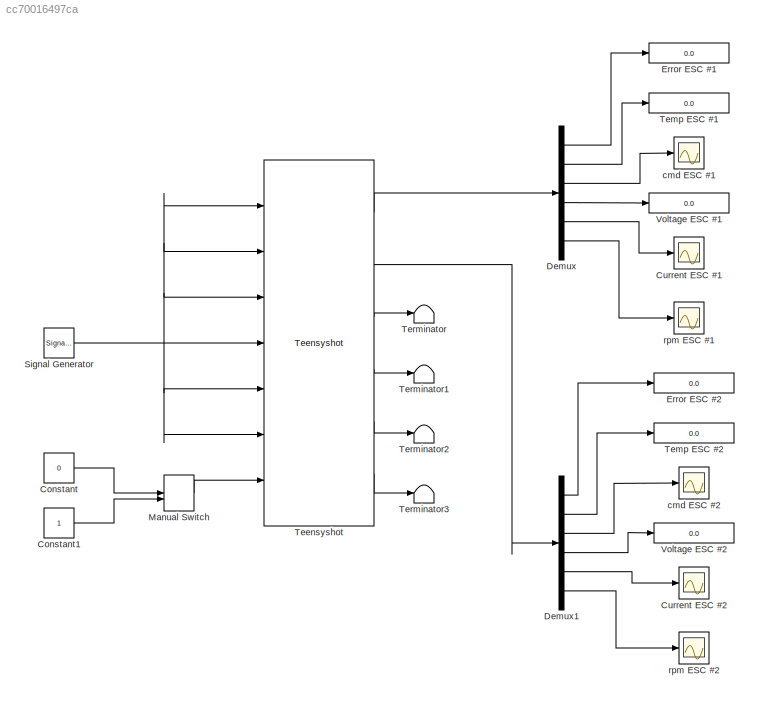
MODEL slx_cc70016497ca
KIND model
CONFIG AbsTol = auto
CONFIG EnableMultiTasking = off
CONFIG FixedStep = auto
CONFIG MaxStep = auto
CONFIG MinStep = auto
CONFIG RelTol = 1e-3
CONFIG SampleTimeConstraint = Unconstrained
CONFIG Solver = FixedStepDiscrete
CONFIG SolverName = FixedStepDiscrete
CONFIG StartTime = 0.0
CONFIG StopTime = Inf
BLOCK [Constant] Constant
  SampleTime = 0.01
  Value = 0
BLOCK [Constant] Constant1
  SampleTime = 0.01
BLOCK [Scope] Current ESC #1
  Floating = off
  NumInputPorts = 1
  Ports = [1]
  ScopeSpecificationString = Simulink.scopes.TimeScopeBlockCfg('CurrentConfiguration', extmgr.ConfigurationSet(extmgr.Configuration('Core','General UI',true),extmgr.Configuration('Core','Source UI',true),extmgr.Configuration('Sources','WiredSimulink',true,'DataLoggingVariableName','ScopeData1'),extmgr.Configuration('Visuals','Time Domain',true),extmgr.Configuration('Tools','Plot Navigation',true),extmgr.Configuration('Tools',...<+40ch>
BLOCK [Scope] Current ESC #2
  Floating = off
  NumInputPorts = 1
  Ports = [1]
  ScopeSpecificationString = Simulink.scopes.TimeScopeBlockCfg('CurrentConfiguration', extmgr.ConfigurationSet(extmgr.Configuration('Core','General UI',true),extmgr.Configuration('Core','Source UI',true),extmgr.Configuration('Sources','WiredSimulink',true,'DataLoggingVariableName','ScopeData3'),extmgr.Configuration('Visuals','Time Domain',true),extmgr.Configuration('Tools','Plot Navigation',true),extmgr.Configuration('Tools',...<+40ch>
BLOCK [Demux] Demux
  DisplayOption = bar
  Outputs = 6
  Ports = [1, 6]
BLOCK [Demux] Demux1
  DisplayOption = bar
  Outputs = 6
  Ports = [1, 6]
BLOCK [Display] Error ESC #1
  Decimation = 1
  Ports = [1]
BLOCK [Display] Error ESC #2
  Decimation = 1
  Ports = [1]
BLOCK [ManualSwitch] Manual Switch
  CurrentSetting = 0
BLOCK [SignalGenerator] Signal Generator
  Amplitude = 200
  Frequency = 0.25
  Ports = [0, 1]
  WaveForm = square
BLOCK [Reference] Teensyshot  REF=rpi_blkst/Teensyshot  (lib defined in mdl_5f9edbe601a8, slx_830431f926a7)
  Ports = [7, 6]
  SourceBlock = rpi_blkst/Teensyshot
  SourceProductName = RPI Blockset
  SourceType = teensyshot communication
BLOCK [Display] Temp ESC #1
  Decimation = 1
  Ports = [1]
BLOCK [Display] Temp ESC #2
  Decimation = 1
  Ports = [1]
BLOCK [Terminator] Terminator
BLOCK [Terminator] Terminator1
BLOCK [Terminator] Terminator2
BLOCK [Terminator] Terminator3
BLOCK [Display] Voltage ESC #1
  Decimation = 1
  Ports = [1]
BLOCK [Display] Voltage ESC #2
  Decimation = 1
  Ports = [1]
BLOCK [Scope] cmd ESC #1
  Floating = off
  NumInputPorts = 1
  Ports = [1]
  ScopeSpecificationString = Simulink.scopes.TimeScopeBlockCfg('CurrentConfiguration', extmgr.ConfigurationSet(extmgr.Configuration('Core','General UI',true),extmgr.Configuration('Core','Source UI',true),extmgr.Configuration('Sources','WiredSimulink',true),extmgr.Configuration('Visuals','Time Domain',true,'SerializedDisplays',{struct('MinYLimReal','-107.75','MaxYLimReal','1459.75','YLabelReal','','MinYLimMag',' 0.00000','MaxY...<+1400ch>
BLOCK [Scope] cmd ESC #2
  Floating = off
  NumInputPorts = 1
  Ports = [1]
  ScopeSpecificationString = Simulink.scopes.TimeScopeBlockCfg('CurrentConfiguration', extmgr.ConfigurationSet(extmgr.Configuration('Core','General UI',true),extmgr.Configuration('Core','Source UI',true),extmgr.Configuration('Sources','WiredSimulink',true,'DataLoggingVariableName','ScopeData4'),extmgr.Configuration('Visuals','Time Domain',true,'SerializedDisplays',{struct('MinYLimReal','-46.625','MaxYLimReal','1309.625','YLab...<+1440ch>
BLOCK [Scope] rpm ESC #1
  Floating = off
  NumInputPorts = 1
  Ports = [1]
  ScopeSpecificationString = Simulink.scopes.TimeScopeBlockCfg('CurrentConfiguration', extmgr.ConfigurationSet(extmgr.Configuration('Core','General UI',true),extmgr.Configuration('Core','Source UI',true),extmgr.Configuration('Sources','WiredSimulink',true,'DataLoggingVariableName','ScopeData2'),extmgr.Configuration('Visuals','Time Domain',true,'SerializedDisplays',{struct('MinYLimReal','-1034.125','MaxYLimReal','1037.125','YL...<+1430ch>
BLOCK [Scope] rpm ESC #2
  Floating = off
  NumInputPorts = 1
  Ports = [1]
  ScopeSpecificationString = Simulink.scopes.TimeScopeBlockCfg('CurrentConfiguration', extmgr.ConfigurationSet(extmgr.Configuration('Core','General UI',true),extmgr.Configuration('Core','Source UI',true),extmgr.Configuration('Sources','WiredSimulink',true,'DataLoggingVariableName','ScopeData5'),extmgr.Configuration('Visuals','Time Domain',true,'SerializedDisplays',{struct('MinYLimReal','-488.125','MaxYLimReal','493.125','YLab...<+1469ch>
LINE Constant1:1 -> Manual Switch:2
LINE Constant:1 -> Manual Switch:1
LINE Demux1:1 -> Error ESC #2:1
LINE Demux1:2 -> Temp ESC #2:1
LINE Demux1:3 -> cmd ESC #2:1
LINE Demux1:4 -> Voltage ESC #2:1
LINE Demux1:5 -> Current ESC #2:1
LINE Demux1:6 -> rpm ESC #2:1
LINE Demux:1 -> Error ESC #1:1
LINE Demux:2 -> Temp ESC #1:1
LINE Demux:3 -> cmd ESC #1:1
LINE Demux:4 -> Voltage ESC #1:1
LINE Demux:5 -> Current ESC #1:1
LINE Demux:6 -> rpm ESC #1:1
LINE Manual Switch:1 -> Teensyshot:7
NET Signal Generator:1 -> Teensyshot:1, Teensyshot:2, Teensyshot:3, Teensyshot:4, Teensyshot:5, Teensyshot:6
LINE Teensyshot:1 -> Demux:1
LINE Teensyshot:2 -> Demux1:1
LINE Teensyshot:3 -> Terminator:1
LINE Teensyshot:4 -> Terminator1:1
LINE Teensyshot:5 -> Terminator2:1
LINE Teensyshot:6 -> Terminator3:1
note: NET lines group one-source signal fan-out (src -> all destinations, sorted); 1:1 wires keep LINE
